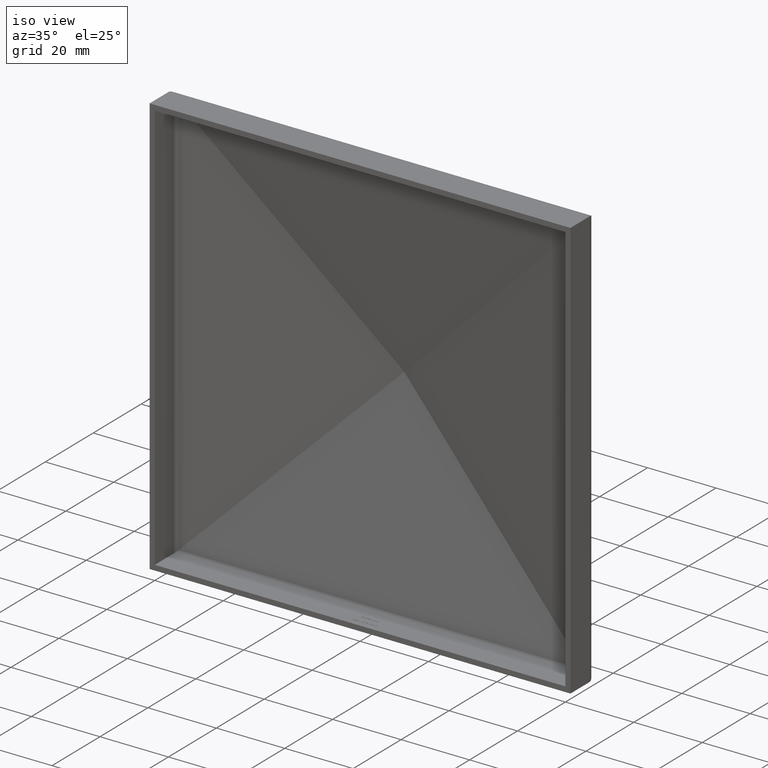
[diagram: clean part render]
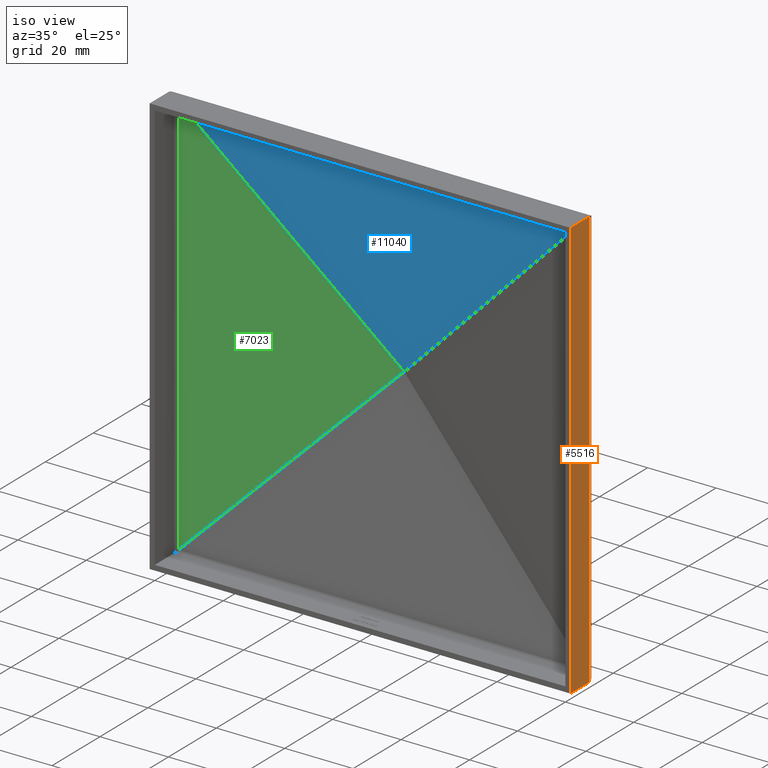
[diagram: same view with three faces highlighted in distinct colors, each labeled with its STEP entity id]
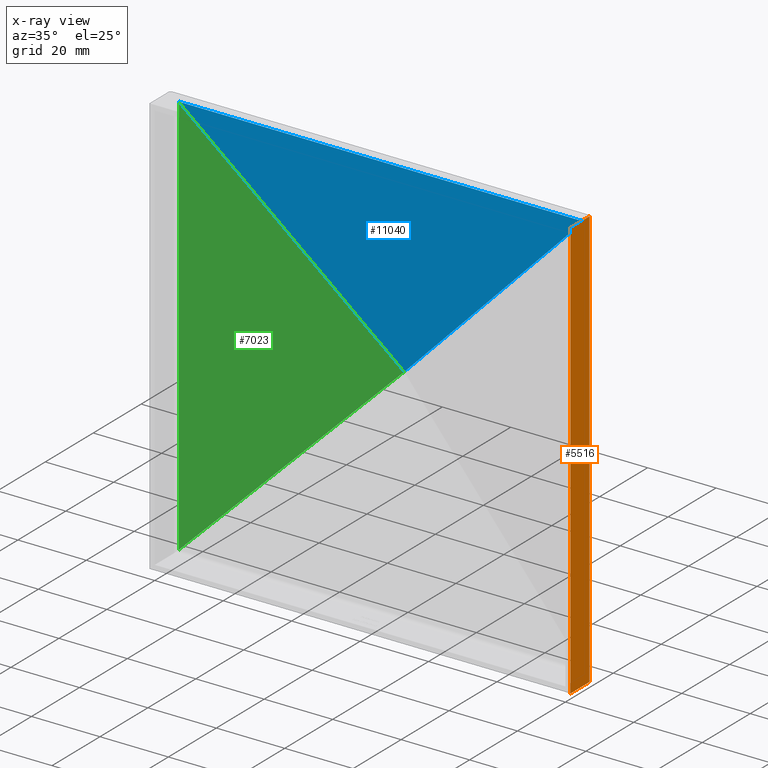
[diagram: x-ray of the same camera — body ghosted, the three highlighted faces saturated]
A machine part, iso view with three faces highlighted in distinct colors.
The next image is the same camera in x-ray (body ghosted, the three faces saturated) — at least one of them is partly hidden behind the body in this view.
Their STEP definitions:

[orange] entity #5516 — the highlighted planar face has unit normal (-1, 0, 0).
#319 = DIRECTION ( 'NONE',  ( -1.128275431529630700E-016, -0.0000000000000000000, -1.000000000000000000 ) ) ;
#600 = ORIENTED_EDGE ( 'NONE', *, *, #3888, .T. ) ;
#1045 = DIRECTION ( 'NONE',  ( -0.0000000000000000000, -1.000000000000000000, -0.0000000000000000000 ) ) ;
#1093 = DIRECTION ( 'NONE',  ( -0.0000000000000000000, -0.0000000000000000000, 1.000000000000000000 ) ) ;
#1783 = VECTOR ( 'NONE', #319, 1000.000000000000000 ) ;
#1926 = CARTESIAN_POINT ( 'NONE',  ( 61.50000000000001400, 0.0000000000000000000, 61.50000000000000000 ) ) ;
#2458 = DIRECTION ( 'NONE',  ( 1.128275431529630700E-016, 0.0000000000000000000, 1.000000000000000000 ) ) ;
#2683 = AXIS2_PLACEMENT_3D ( 'NONE', #11652, #10594, #2458 ) ;
#2723 = CARTESIAN_POINT ( 'NONE',  ( 61.50000000000014200, 7.873715392397326000, 61.49999999999998600 ) ) ;
#2814 = VERTEX_POINT ( 'NONE', #2723 ) ;
#2936 = ORIENTED_EDGE ( 'NONE', *, *, #3851, .T. ) ;
#3429 = EDGE_CURVE ( 'NONE', #8666, #4371, #8927, .T. ) ;
#3851 = EDGE_CURVE ( 'NONE', #2814, #8666, #7940, .T. ) ;
#3888 = EDGE_CURVE ( 'NONE', #5071, #2814, #9266, .T. ) ;
#4371 = VERTEX_POINT ( 'NONE', #7152 ) ;
#4400 = EDGE_LOOP ( 'NONE', ( #600, #2936, #11270, #9516 ) ) ;
#4414 = LINE ( 'NONE', #12505, #8225 ) ;
#4521 = PLANE ( 'NONE',  #2683 ) ;
#4604 = CARTESIAN_POINT ( 'NONE',  ( 61.50000000000011400, 7.873715392397326000, -61.50000000000001400 ) ) ;
#5050 = CARTESIAN_POINT ( 'NONE',  ( 61.50000000000001400, 25.00000000000000000, 61.50000000000000000 ) ) ;
#5071 = VERTEX_POINT ( 'NONE', #4604 ) ;
#5263 = DIRECTION ( 'NONE',  ( -0.0000000000000000000, -1.000000000000000000, -0.0000000000000000000 ) ) ;
#5516 = ADVANCED_FACE ( 'NONE', ( #11628 ), #4521, .F. ) ;
#6373 = CARTESIAN_POINT ( 'NONE',  ( 61.50000000000000000, 0.0000000000000000000, -61.50000000000000000 ) ) ;
#7007 = EDGE_CURVE ( 'NONE', #5071, #4371, #4414, .T. ) ;
#7152 = CARTESIAN_POINT ( 'NONE',  ( 61.50000000000000000, 0.0000000000000000000, -61.50000000000000000 ) ) ;
#7627 = VECTOR ( 'NONE', #1093, 1000.000000000000000 ) ;
#7940 = LINE ( 'NONE', #5050, #9904 ) ;
#8225 = VECTOR ( 'NONE', #5263, 1000.000000000000000 ) ;
#8666 = VERTEX_POINT ( 'NONE', #1926 ) ;
#8927 = LINE ( 'NONE', #6373, #1783 ) ;
#9266 = LINE ( 'NONE', #10266, #7627 ) ;
#9516 = ORIENTED_EDGE ( 'NONE', *, *, #7007, .F. ) ;
#9904 = VECTOR ( 'NONE', #1045, 1000.000000000000000 ) ;
#10266 = CARTESIAN_POINT ( 'NONE',  ( 61.50000000000001400, 7.873715392397326000, -61.50000000000000000 ) ) ;
#10594 = DIRECTION ( 'NONE',  ( -1.000000000000000000, 0.0000000000000000000, 1.128275431529630700E-016 ) ) ;
#11270 = ORIENTED_EDGE ( 'NONE', *, *, #3429, .T. ) ;
#11628 = FACE_OUTER_BOUND ( 'NONE', #4400, .T. ) ;
#11652 = CARTESIAN_POINT ( 'NONE',  ( 61.50000000000000000, 25.00000000000000000, -61.50000000000000000 ) ) ;
#12505 = CARTESIAN_POINT ( 'NONE',  ( 61.50000000000000000, 25.00000000000000000, -61.50000000000000000 ) ) ;

[blue] entity #11040 — the highlighted planar face has unit normal (0, 0.987, 0.1605).
#914 = VECTOR ( 'NONE', #948, 999.9999999999998900 ) ;
#948 = DIRECTION ( 'NONE',  ( -0.7024775622906055400, 0.1142389992800061100, -0.7024775622906054300 ) ) ;
#965 = CARTESIAN_POINT ( 'NONE',  ( -61.50000000000012100, 8.860748901228500800, 59.16051433719403000 ) ) ;
#1094 = FACE_OUTER_BOUND ( 'NONE', #5676, .T. ) ;
#1895 = CARTESIAN_POINT ( 'NONE',  ( -30.46252201577450000, 23.43551475141977000, -30.46252201577449300 ) ) ;
#1987 = DIRECTION ( 'NONE',  ( 1.000000000000000000, -7.035839886624519000E-017, -1.144189296411760100E-017 ) ) ;
#2199 = VECTOR ( 'NONE', #10408, 1000.000000000000000 ) ;
#2255 = CARTESIAN_POINT ( 'NONE',  ( 0.3823998566662573100, 18.54379544515201800, -0.3823998566662503700 ) ) ;
#2462 = EDGE_CURVE ( 'NONE', #6313, #8836, #13183, .T. ) ;
#2782 = PLANE ( 'NONE',  #12352 ) ;
#3144 = LINE ( 'NONE', #1895, #914 ) ;
#3361 = ORIENTED_EDGE ( 'NONE', *, *, #2462, .F. ) ;
#3756 = VECTOR ( 'NONE', #1987, 1000.000000000000000 ) ;
#5122 = CARTESIAN_POINT ( 'NONE',  ( 0.0000000000000000000, 18.48160843834153900, 3.469446951953614200E-015 ) ) ;
#5676 = EDGE_LOOP ( 'NONE', ( #10325, #9668, #3361 ) ) ;
#6313 = VERTEX_POINT ( 'NONE', #5122 ) ;
#6814 = DIRECTION ( 'NONE',  ( 0.0000000000000000000, -0.1605143371939297400, 0.9870335088309785100 ) ) ;
#7902 = DIRECTION ( 'NONE',  ( 7.128268517405877500E-017, 0.9870335088309786200, 0.1605143371939297700 ) ) ;
#7990 = VERTEX_POINT ( 'NONE', #8662 ) ;
#8326 = EDGE_CURVE ( 'NONE', #7990, #6313, #3144, .T. ) ;
#8662 = CARTESIAN_POINT ( 'NONE',  ( 59.16051433719400900, 8.860748901228451000, 59.16051433719399500 ) ) ;
#8836 = VERTEX_POINT ( 'NONE', #12236 ) ;
#9668 = ORIENTED_EDGE ( 'NONE', *, *, #13166, .F. ) ;
#10325 = ORIENTED_EDGE ( 'NONE', *, *, #8326, .F. ) ;
#10408 = DIRECTION ( 'NONE',  ( -0.7024775622906045400, -0.1142389992800061600, 0.7024775622906063200 ) ) ;
#10947 = LINE ( 'NONE', #965, #3756 ) ;
#11040 = ADVANCED_FACE ( 'NONE', ( #1094 ), #2782, .F. ) ;
#12015 = CARTESIAN_POINT ( 'NONE',  ( -61.50000000000012100, 18.51815308763663400, -0.2247200720714741000 ) ) ;
#12236 = CARTESIAN_POINT ( 'NONE',  ( -59.16051433719361800, 8.860748901228449300, 59.16051433719405800 ) ) ;
#12352 = AXIS2_PLACEMENT_3D ( 'NONE', #12015, #7902, #6814 ) ;
#13166 = EDGE_CURVE ( 'NONE', #8836, #7990, #10947, .T. ) ;
#13183 = LINE ( 'NONE', #2255, #2199 ) ;

[green] entity #7023 — the highlighted planar face has unit normal (0.1605, -0.987, 0).
#63 = CARTESIAN_POINT ( 'NONE',  ( -59.16051433719422900, 8.860748901228442200, -59.16051433719362500 ) ) ;
#1273 = DIRECTION ( 'NONE',  ( 0.9870335088309785100, 0.1605143371939299900, 0.0000000000000000000 ) ) ;
#1351 = DIRECTION ( 'NONE',  ( -0.0000000000000000000, 0.0000000000000000000, 1.000000000000000000 ) ) ;
#1702 = ORIENTED_EDGE ( 'NONE', *, *, #10980, .T. ) ;
#2145 = EDGE_CURVE ( 'NONE', #10493, #8836, #10503, .T. ) ;
#2199 = VECTOR ( 'NONE', #10408, 1000.000000000000000 ) ;
#2255 = CARTESIAN_POINT ( 'NONE',  ( 0.3823998566662573100, 18.54379544515201800, -0.3823998566662503700 ) ) ;
#2462 = EDGE_CURVE ( 'NONE', #6313, #8836, #13183, .T. ) ;
#3815 = LINE ( 'NONE', #7773, #11785 ) ;
#4959 = EDGE_LOOP ( 'NONE', ( #1702, #10788, #8539 ) ) ;
#5122 = CARTESIAN_POINT ( 'NONE',  ( 0.0000000000000000000, 18.48160843834153900, 3.469446951953614200E-015 ) ) ;
#5391 = CARTESIAN_POINT ( 'NONE',  ( -59.16051433719395200, 8.860748901228490100, -61.50000000000000000 ) ) ;
#5395 = DIRECTION ( 'NONE',  ( 0.1605143371939299900, -0.9870335088309785100, 0.0000000000000000000 ) ) ;
#6313 = VERTEX_POINT ( 'NONE', #5122 ) ;
#7023 = ADVANCED_FACE ( 'NONE', ( #12895 ), #9392, .T. ) ;
#7773 = CARTESIAN_POINT ( 'NONE',  ( -60.31499138250924800, 8.673004396025348200, -60.31499138250922700 ) ) ;
#8539 = ORIENTED_EDGE ( 'NONE', *, *, #2145, .F. ) ;
#8804 = DIRECTION ( 'NONE',  ( 0.7024775622906054300, 0.1142389992800062800, 0.7024775622906052100 ) ) ;
#8836 = VERTEX_POINT ( 'NONE', #12236 ) ;
#8908 = AXIS2_PLACEMENT_3D ( 'NONE', #11396, #5395, #1273 ) ;
#9392 = PLANE ( 'NONE',  #8908 ) ;
#10408 = DIRECTION ( 'NONE',  ( -0.7024775622906045400, -0.1142389992800061600, 0.7024775622906063200 ) ) ;
#10493 = VERTEX_POINT ( 'NONE', #63 ) ;
#10503 = LINE ( 'NONE', #5391, #12568 ) ;
#10788 = ORIENTED_EDGE ( 'NONE', *, *, #2462, .T. ) ;
#10980 = EDGE_CURVE ( 'NONE', #10493, #6313, #3815, .T. ) ;
#11396 = CARTESIAN_POINT ( 'NONE',  ( -59.16051433719395200, 8.860748901228490100, -61.50000000000000000 ) ) ;
#11785 = VECTOR ( 'NONE', #8804, 1000.000000000000100 ) ;
#12236 = CARTESIAN_POINT ( 'NONE',  ( -59.16051433719361800, 8.860748901228449300, 59.16051433719405800 ) ) ;
#12568 = VECTOR ( 'NONE', #1351, 1000.000000000000000 ) ;
#12895 = FACE_OUTER_BOUND ( 'NONE', #4959, .T. ) ;
#13183 = LINE ( 'NONE', #2255, #2199 ) ;